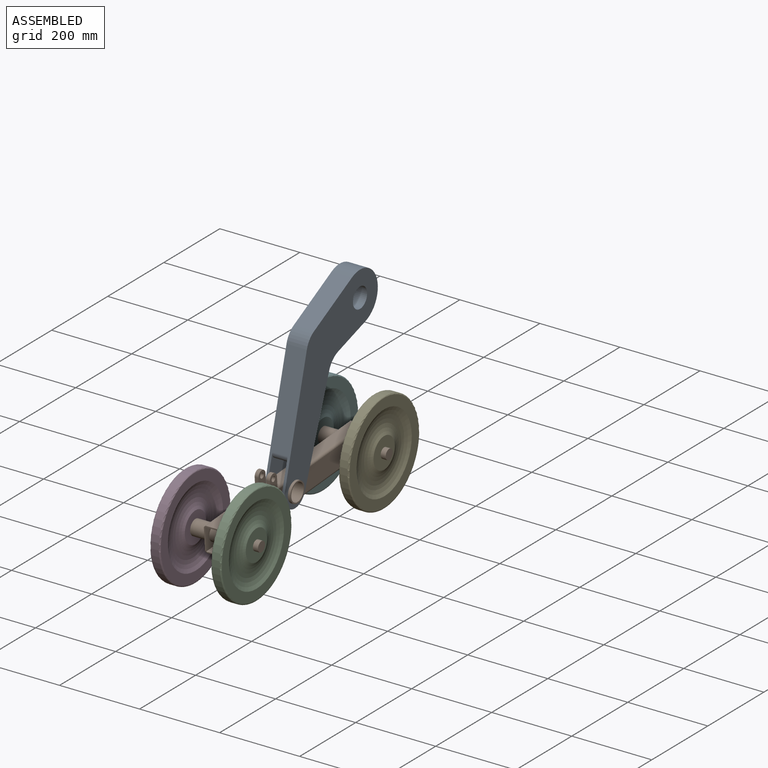
[diagram: assembled view]
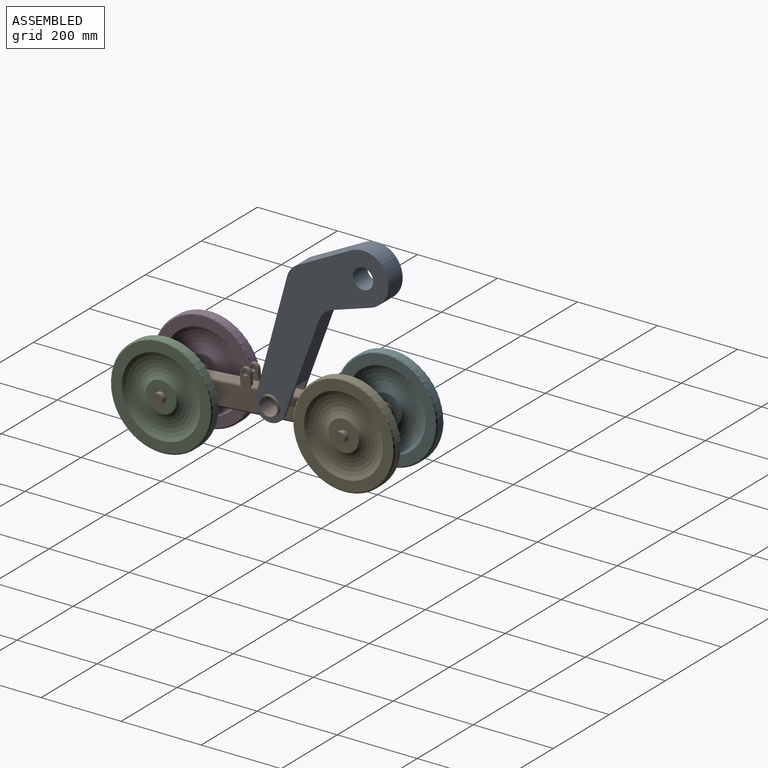
[diagram: assembled view, second angle]
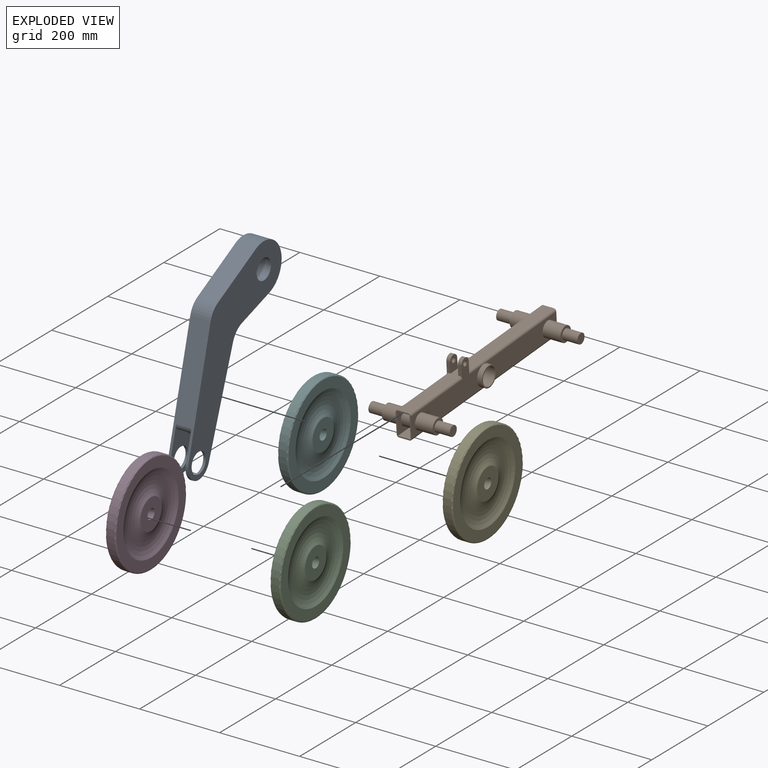
[diagram: exploded view]
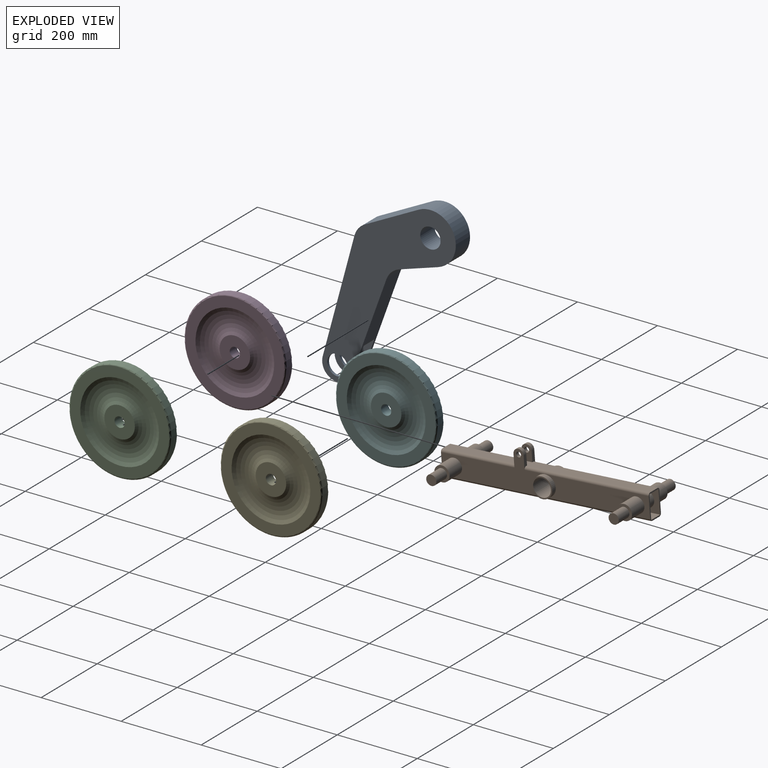
[diagram: exploded view, second angle]
ASSEMBLY  parts=6 mates=10
PART A: 19 faces, bbox 50.8x334.1x450.6 mm
  f0: plane 294x79.39mm, normal (0,-0.97,0.26), area 12577.3mm2, adj f1,f5,f6,f11,f12,f15,f16,f18
  f1: cylinder r=38.1mm len=73.93mm, axis (-1,0,0), area 739.9mm2, adj f0,f7,f11,f15
  f2: cylinder r=25.4mm len=50.8mm, axis (-1,0,0), area 1013.4mm2, adj f12,f16
  f3: cylinder r=63.5mm len=123.99mm, axis (-1,0,0), area 10672.4mm2, adj f4,f8,f11,f12
  f4: plane 134.98x69.61mm, normal (0,-0.46,0.89), area 7715mm2, adj f3,f5,f11,f12
  f5: cylinder r=50.8mm len=50.8mm, axis (-1,0,0), area 2144.3mm2, adj f0,f4,f11,f12
  f6: cylinder r=38.1mm len=73.93mm, axis (-1,0,0), area 739.9mm2, adj f0,f7,f12,f16
  f7: plane 239.37x86.59mm, normal (0,0.94,-0.34), area 9947.1mm2, adj f1,f6,f11,f12,f13,f15,f16,f17
  f8: plane 97.05x50.8mm, normal (0,0.3,-0.95), area 5175.8mm2, adj f3,f11,f12,f13
  f9: cylinder r=25.4mm len=50.8mm, axis (-1,0,0), area 8107.3mm2, adj f11,f12
  f10: cylinder r=25.4mm len=50.8mm, axis (-1,0,0), area 1013.4mm2, adj f11,f15
  f11: plane 450.61x334.05mm, normal (1,0,0), area 49160.5mm2, adj f0,f1,f3,f4,f5,f7,f8,f9
  f12: plane 450.61x334.05mm, normal (-1,0,0), area 49160.5mm2, adj f0,f2,f3,f4,f5,f6,f7,f8
  f13: cylinder r=50.8mm len=50.8mm, axis (-1,0,0), area 2359.8mm2, adj f7,f8,f11,f12
  f14: plane 55.25x38.1mm, normal (0,-0.26,-0.97), area 2180.6mm2, adj f15,f16,f17,f18
  f15: plane 121.34x100.57mm, normal (-1,0,0), area 5310.5mm2, adj f0,f1,f7,f10,f14,f17,f18
  f16: plane 121.34x100.57mm, normal (1,0,0), area 5310.5mm2, adj f0,f2,f6,f7,f14,f17,f18
  f17: cylinder r=12.7mm len=38.1mm, axis (1,0,0), area 719.7mm2, adj f7,f14,f15,f16
  f18: cylinder r=12.7mm len=38.1mm, axis (-1,0,0), area 760.1mm2, adj f0,f14,f15,f16
PART B: 58 faces, bbox 203.2x520.7x101.6 mm
  f0: plane 31.75x9.53mm, normal (0,1,0), area 250.6mm2, adj f4,f11,f14,f50,f57
  f1: plane 31.75x9.53mm, normal (0,-1,0), area 250.6mm2, adj f4,f10,f11,f14,f57
  f2: cylinder r=6.35mm len=12.7mm, axis (1,0,0), area 380mm2, adj f18,f56
  f3: cylinder r=12.7mm len=25.4mm, axis (1,0,0), area 380mm2, adj f18,f51,f52,f56
  f4: cylinder r=12.7mm len=25.4mm, axis (1,0,0), area 380mm2, adj f0,f1,f11,f57
  f5: plane 184.15x57.15mm, normal (-1,0,0), area 9384.1mm2, adj f6,f7,f15,f28,f54
  f6: plane 184.15x31.75mm, normal (0,0,-1), area 5846.8mm2, adj f5,f8,f15,f54
  f7: plane 184.15x31.75mm, normal (0,0,1), area 5846.8mm2, adj f5,f8,f15,f54
  f8: plane 184.15x57.15mm, normal (1,0,0), area 9384.1mm2, adj f6,f7,f15,f28,f54
  f9: cylinder r=6.35mm len=184.15mm, axis (0,-1,0), area 1836.8mm2, adj f14,f15,f18,f52
  f10: cylinder r=6.35mm len=184.15mm, axis (0,1,0), area 1836.8mm2, adj f1,f11,f14,f15
  f11: plane 260.35x95.25mm, normal (1,0,0), area 12005.4mm2, adj f0,f1,f4,f10,f15,f31,f44,f49
  f12: plane 260.35x50.8mm, normal (-1,0,0), area 11072.3mm2, adj f13,f25,f42,f47,f48
  f13: plane 63.5x38.1mm, normal (0,1,0), area 570.2mm2, adj f12,f14,f16,f17,f19,f20,f21,f22
  f14: plane 520.7x25.4mm, normal (0,0,1), area 13064.5mm2, adj f0,f1,f9,f10,f13,f15,f48,f50
  f15: plane 63.5x38.1mm, normal (0,-1,0), area 570.2mm2, adj f5,f6,f7,f8,f9,f10,f11,f14
  f16: plane 520.7x25.4mm, normal (0,0,-1), area 13225.8mm2, adj f13,f15,f47,f49
  f17: plane 260.35x50.8mm, normal (1,0,0), area 11072.3mm2, adj f13,f26,f44,f49,f50
  f18: plane 260.35x95.25mm, normal (-1,0,0), area 12005.4mm2, adj f2,f3,f9,f15,f30,f42,f47,f48
  f19: plane 311.15x57.15mm, normal (-1,0,0), area 14615.3mm2, adj f13,f20,f21,f23,f41,f53
  f20: plane 311.15x31.75mm, normal (0,0,-1), area 9879mm2, adj f13,f19,f22,f53
  f21: plane 311.15x31.75mm, normal (0,0,1), area 9879mm2, adj f13,f19,f22,f53
  f22: plane 311.15x57.15mm, normal (1,0,0), area 14615.3mm2, adj f13,f20,f21,f23,f41,f53
  f23: cylinder r=19.05mm len=38.1mm, axis (-1,0,0), area 3800.3mm2, adj f19,f22
  f24: plane 38.1x38.1mm, normal (-1,0,0), area 633.4mm2, adj f25,f37
  f25: cylinder r=19.05mm len=44.45mm, axis (-1,0,0), area 5320.4mm2, adj f12,f24
  f26: cylinder r=19.05mm len=44.45mm, axis (-1,0,0), area 5320.4mm2, adj f17,f27
  f27: plane 38.1x38.1mm, normal (1,0,0), area 633.4mm2, adj f26,f35
  f28: cylinder r=19.05mm len=38.1mm, axis (-1,0,0), area 3800.3mm2, adj f5,f8
  f29: plane 38.1x38.1mm, normal (-1,0,0), area 633.4mm2, adj f30,f39
  f30: cylinder r=19.05mm len=44.45mm, axis (-1,0,0), area 5320.4mm2, adj f18,f29
  f31: cylinder r=19.05mm len=44.45mm, axis (-1,0,0), area 5320.4mm2, adj f11,f32
  f32: plane 38.1x38.1mm, normal (1,0,0), area 633.4mm2, adj f31,f33
  f33: cylinder r=12.7mm len=38.1mm, axis (-1,0,0), area 3040.2mm2, adj f32,f34
  f34: plane 25.4x25.4mm, normal (1,0,0), area 506.7mm2, adj f33
  f35: cylinder r=12.7mm len=38.1mm, axis (-1,0,0), area 3040.2mm2, adj f27,f36
  f36: plane 25.4x25.4mm, normal (1,0,0), area 506.7mm2, adj f35
  f37: cylinder r=12.7mm len=38.1mm, axis (1,0,0), area 3040.2mm2, adj f24,f38
  f38: plane 25.4x25.4mm, normal (-1,0,0), area 506.7mm2, adj f37
  f39: cylinder r=12.7mm len=38.1mm, axis (1,0,0), area 3040.2mm2, adj f29,f40
  f40: plane 25.4x25.4mm, normal (-1,0,0), area 506.7mm2, adj f39
  f41: cylinder r=25.4mm len=50.8mm, axis (-1,0,0), area 5067.1mm2, adj f19,f22
  f42: cylinder r=25.4mm len=50.8mm, axis (-1,0,0), area 2026.8mm2, adj f12,f18,f46
  f43: cylinder r=22.23mm len=63.5mm, axis (-1,0,0), area 8867.4mm2, adj f45,f46
  f44: cylinder r=25.4mm len=50.8mm, axis (-1,0,0), area 2026.8mm2, adj f11,f17,f45
  f45: plane 50.8x50.8mm, normal (1,0,0), area 475mm2, adj f43,f44
  f46: plane 50.8x50.8mm, normal (-1,0,0), area 475mm2, adj f42,f43
  f47: cylinder r=6.35mm len=520.7mm, axis (0,1,0), area 5193.8mm2, adj f12,f13,f15,f16,f18
  f48: cylinder r=6.35mm len=311.15mm, axis (0,-1,0), area 3103.6mm2, adj f12,f13,f14,f18,f51
  f49: cylinder r=6.35mm len=520.7mm, axis (0,-1,0), area 5193.8mm2, adj f11,f13,f15,f16,f17
  f50: cylinder r=6.35mm len=311.15mm, axis (0,1,0), area 3103.6mm2, adj f0,f11,f13,f14,f17
  f51: plane 31.75x9.53mm, normal (0,1,0), area 250.6mm2, adj f3,f14,f18,f48,f56
  f52: plane 31.75x9.53mm, normal (0,-1,0), area 250.6mm2, adj f3,f9,f14,f18,f56
  f53: plane 57.15x31.75mm, normal (0,1,0), area 1814.5mm2, adj f19,f20,f21,f22
  f54: plane 57.15x31.75mm, normal (0,-1,0), area 1814.5mm2, adj f5,f6,f7,f8
  f55: cylinder r=6.35mm len=12.7mm, axis (1,0,0), area 380mm2, adj f11,f57
  f56: plane 38.1x25.4mm, normal (1,0,0), area 771.8mm2, adj f2,f3,f14,f51,f52
  f57: plane 38.1x25.4mm, normal (-1,0,0), area 771.8mm2, adj f0,f1,f4,f14,f55
PART C: 10 faces, bbox 47x274.9x274.9 mm
  f0: cylinder r=12.7mm len=25.4mm, axis (-1,0,0), area 2026.8mm2, adj f1,f9
  f1: plane 76.2x76.2mm, normal (1,0,0), area 4053.7mm2, adj f0,f2
  f2: torus R=68.26mm, axis (-1,0,0), area 26961.2mm2, adj f1,f3
  f3: plane 247.65x247.65mm, normal (1,0,0), area 17734.8mm2, adj f2,f4
  f4: torus R=123.83mm, axis (-1,0,0), area 3943.5mm2, adj f3,f5
  f5: cylinder r=127mm len=254mm, axis (-1,0,0), area 15201.2mm2, adj f4,f6
  f6: torus R=123.83mm, axis (-1,0,0), area 3943.5mm2, adj f5,f7
  f7: plane 247.65x247.65mm, normal (-1,0,0), area 17734.8mm2, adj f6,f8
  f8: torus R=68.26mm, axis (-1,0,0), area 26961.2mm2, adj f7,f9
  f9: plane 76.2x76.2mm, normal (-1,0,0), area 4053.7mm2, adj f0,f8
PART D: same geometry as C
PART E: same geometry as C
PART F: same geometry as C
PLACE A at identity fixed
PLACE B rot(axis=(1,0,0),4.3deg) t=(25.4,-232.45,-349.01)mm
PLACE C rot(axis=(1,0,0),4.2deg) t=(101.6,-460.4,-366.3)mm
PLACE D rot(axis=(1,0,0),4.2deg) t=(-50.8,-460.4,-366.3)mm
PLACE E rot(axis=(1,0,0),4.2deg) t=(101.6,-4.51,-331.73)mm
PLACE F rot(axis=(1,0,0),4.3deg) t=(-50.8,-4.51,-331.73)mm
MATE planar D.f0 <-> B.f28  axis (1,0,0) through (-38.1,-460.4,-366.3)mm
MATE cylindrical B.f35 <-> F.f0  axis (1,0,0) through (-57.15,-4.51,-331.73)mm
MATE cylindrical B.f33 <-> C.f0  axis (-1,0,0) through (107.95,-460.4,-366.3)mm
MATE cylindrical B.f35 <-> E.f0  axis (-1,0,0) through (107.95,-4.51,-331.73)mm
MATE planar E.f0 <-> B.f23  axis (-1,0,0) through (88.9,-4.51,-331.73)mm
MATE planar B.f11 <-> A.f15  axis (1,0,0) through (44.45,-358.08,-355.04)mm
MATE planar C.f0 <-> B.f33  axis (-1,0,0) through (88.9,-460.4,-366.3)mm
MATE cylindrical A.f1 <-> B.f43  axis (-1,0,0) through (47.63,-232.45,-349.01)mm
MATE planar B.f23 <-> F.f0  axis (-1,0,0) through (-38.1,-4.51,-331.73)mm
MATE cylindrical B.f33 <-> D.f0  axis (1,0,0) through (-57.15,-460.4,-366.3)mm
